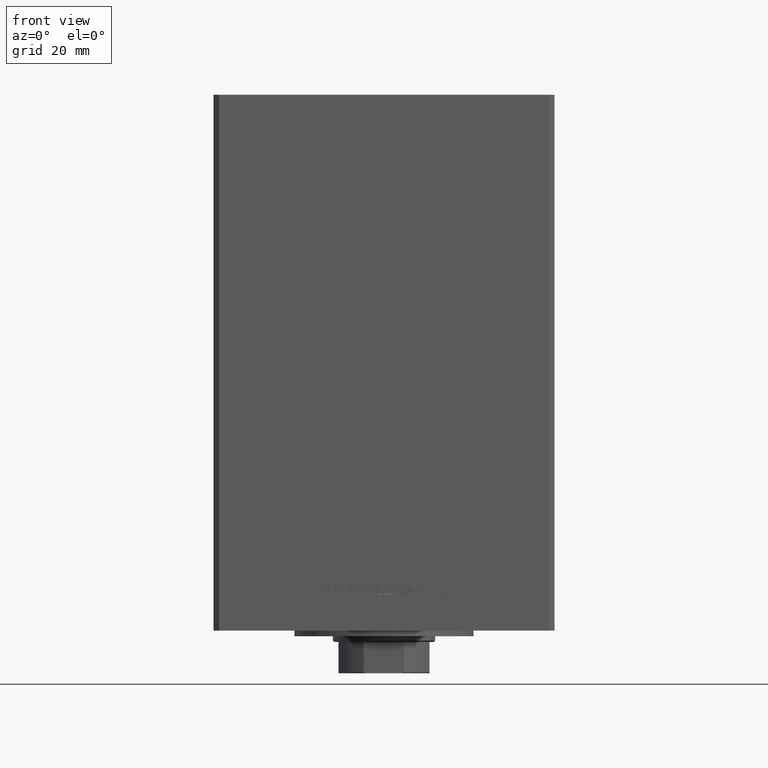
[diagram: clean part render]
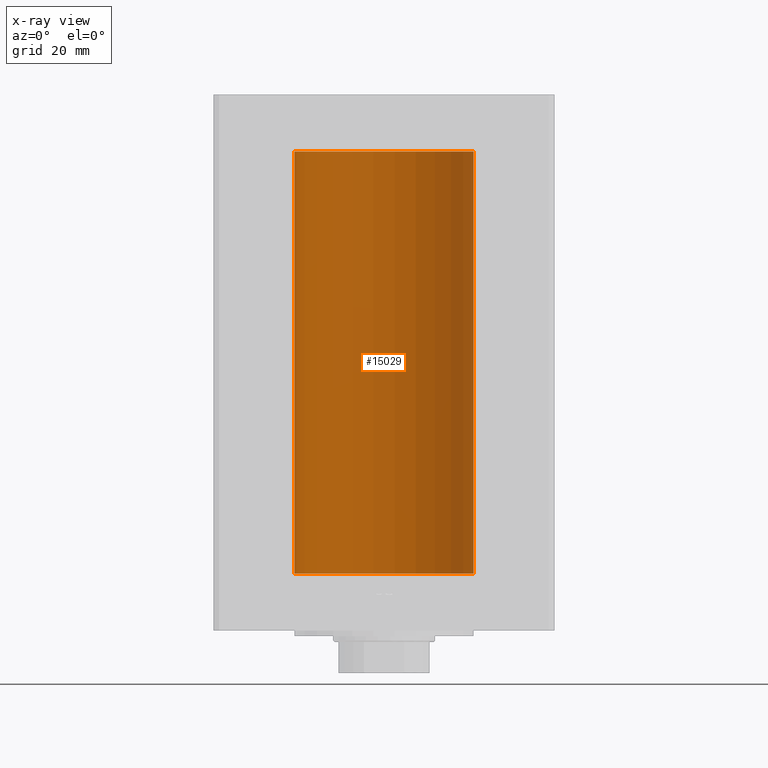
[diagram: x-ray — body ghosted, one internal face saturated and labeled with its STEP entity id]
A machine part, front view, then the same camera in x-ray: the body is ghosted and one INTERNAL B-rep face — a face not visible from any outside direction — is saturated and labeled: STEP entity #15029.
In plain terms, the highlighted cylindrical surface (partial cylindrical patch) has radius 31.5 mm, axis along (-0, -0, -1).
Its self-contained STEP definition (entity closure, byte-faithful):
#317 = VECTOR ( 'NONE', #23096, 1000.000000000000000 ) ;
#2563 = CIRCLE ( 'NONE', #46187, 31.50000000000000000 ) ;
#5978 = DIRECTION ( 'NONE',  ( -0.000000000000000000, 0.000000000000000000, 1.000000000000000000 ) ) ;
#6166 = CARTESIAN_POINT ( 'NONE',  ( 31.50000000000000000, 3.857637417314162689E-15, 148.5000000000000000 ) ) ;
#7703 = CARTESIAN_POINT ( 'NONE',  ( -31.50000000000000000, 0.000000000000000000, 148.5000000000000000 ) ) ;
#7950 = LINE ( 'NONE', #7703, #317 ) ;
#8042 = AXIS2_PLACEMENT_3D ( 'NONE', #25028, #46875, #12849 ) ;
#8098 = DIRECTION ( 'NONE',  ( -1.000000000000000000, 0.000000000000000000, 0.000000000000000000 ) ) ;
#8101 = CARTESIAN_POINT ( 'NONE',  ( -31.50000000000000000, 0.000000000000000000, 0.000000000000000000 ) ) ;
#12849 = DIRECTION ( 'NONE',  ( 1.000000000000000000, 0.000000000000000000, 0.000000000000000000 ) ) ;
#13416 = VECTOR ( 'NONE', #35471, 1000.000000000000000 ) ;
#13496 = ORIENTED_EDGE ( 'NONE', *, *, #33332, .T. ) ;
#15029 = ADVANCED_FACE ( 'NONE', ( #31193 ), #46335, .F. ) ;
#15318 = ORIENTED_EDGE ( 'NONE', *, *, #41499, .F. ) ;
#18930 = AXIS2_PLACEMENT_3D ( 'NONE', #42124, #27470, #8098 ) ;
#19143 = CARTESIAN_POINT ( 'NONE',  ( 31.50000000000000000, 3.857637417314162689E-15, 0.000000000000000000 ) ) ;
#20727 = CIRCLE ( 'NONE', #8042, 31.50000000000000000 ) ;
#21084 = CARTESIAN_POINT ( 'NONE',  ( 31.50000000000000000, 3.857637417314162689E-15, 148.5000000000000000 ) ) ;
#21854 = CARTESIAN_POINT ( 'NONE',  ( 0.000000000000000000, 0.000000000000000000, 0.000000000000000000 ) ) ;
#22314 = EDGE_CURVE ( 'NONE', #44047, #25205, #20727, .T. ) ;
#23096 = DIRECTION ( 'NONE',  ( -0.000000000000000000, -0.000000000000000000, -1.000000000000000000 ) ) ;
#23155 = VERTEX_POINT ( 'NONE', #19143 ) ;
#24437 = EDGE_CURVE ( 'NONE', #23155, #25072, #2563, .T. ) ;
#25028 = CARTESIAN_POINT ( 'NONE',  ( 0.000000000000000000, 0.000000000000000000, 148.5000000000000000 ) ) ;
#25072 = VERTEX_POINT ( 'NONE', #8101 ) ;
#25205 = VERTEX_POINT ( 'NONE', #37804 ) ;
#27470 = DIRECTION ( 'NONE',  ( -0.000000000000000000, -0.000000000000000000, -1.000000000000000000 ) ) ;
#29387 = ORIENTED_EDGE ( 'NONE', *, *, #24437, .F. ) ;
#31193 = FACE_OUTER_BOUND ( 'NONE', #39287, .T. ) ;
#33332 = EDGE_CURVE ( 'NONE', #25205, #25072, #7950, .T. ) ;
#35471 = DIRECTION ( 'NONE',  ( -0.000000000000000000, -0.000000000000000000, -1.000000000000000000 ) ) ;
#37804 = CARTESIAN_POINT ( 'NONE',  ( -31.50000000000000000, 0.000000000000000000, 148.5000000000000000 ) ) ;
#39287 = EDGE_LOOP ( 'NONE', ( #15318, #47176, #13496, #29387 ) ) ;
#40202 = LINE ( 'NONE', #6166, #13416 ) ;
#41499 = EDGE_CURVE ( 'NONE', #44047, #23155, #40202, .T. ) ;
#42124 = CARTESIAN_POINT ( 'NONE',  ( 0.000000000000000000, 0.000000000000000000, 148.5000000000000000 ) ) ;
#44047 = VERTEX_POINT ( 'NONE', #21084 ) ;
#46187 = AXIS2_PLACEMENT_3D ( 'NONE', #21854, #5978, #48431 ) ;
#46335 = CYLINDRICAL_SURFACE ( 'NONE', #18930, 31.50000000000000000 ) ;
#46875 = DIRECTION ( 'NONE',  ( -0.000000000000000000, 0.000000000000000000, 1.000000000000000000 ) ) ;
#47176 = ORIENTED_EDGE ( 'NONE', *, *, #22314, .T. ) ;
#48431 = DIRECTION ( 'NONE',  ( 1.000000000000000000, 0.000000000000000000, 0.000000000000000000 ) ) ;